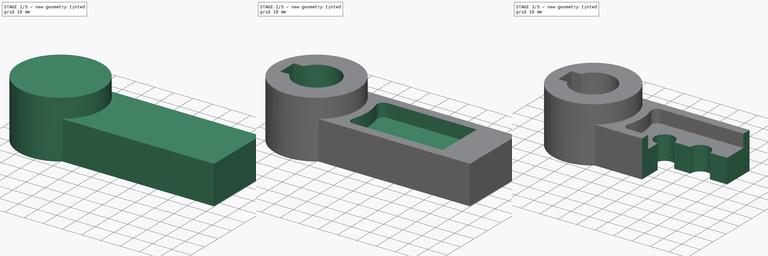
[diagram: build sequence overview — one tinted view per stage of 3, left to right]
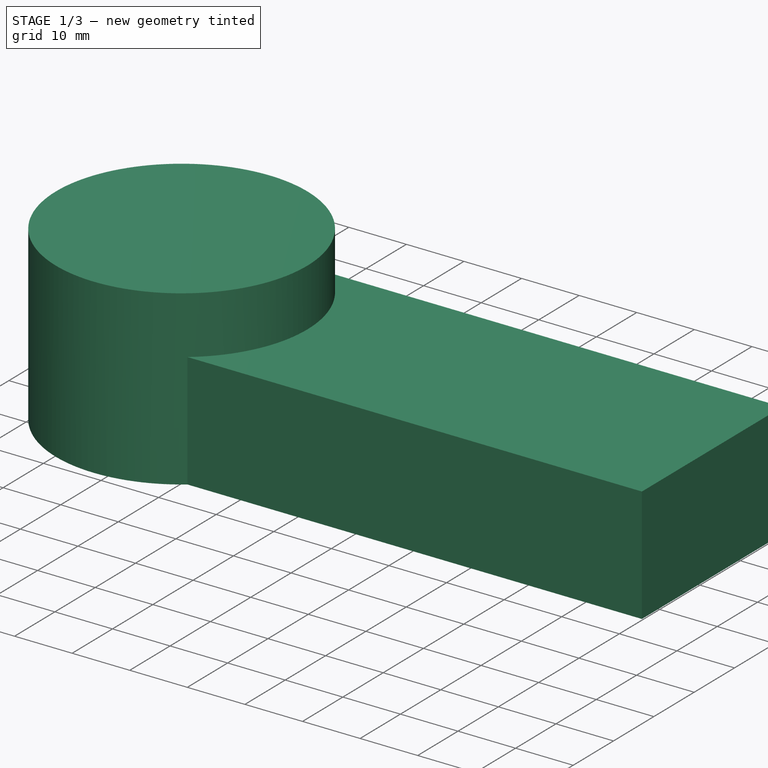
[diagram: stage 1 of 3 — iso view after this stage's code; geometry added in this stage tinted green]
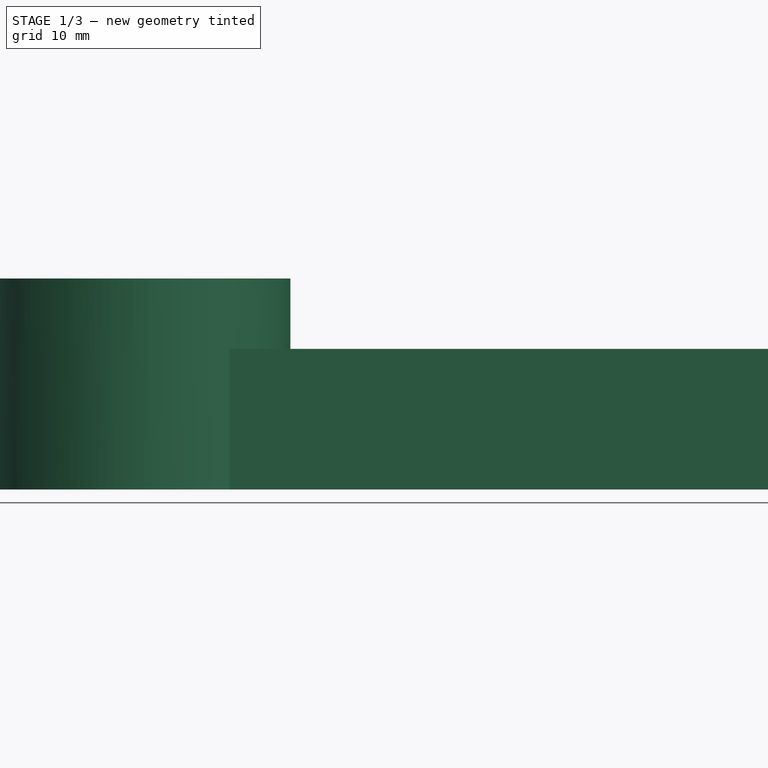
[diagram: stage 1 of 3 — front view after this stage's code; geometry added in this stage tinted green]
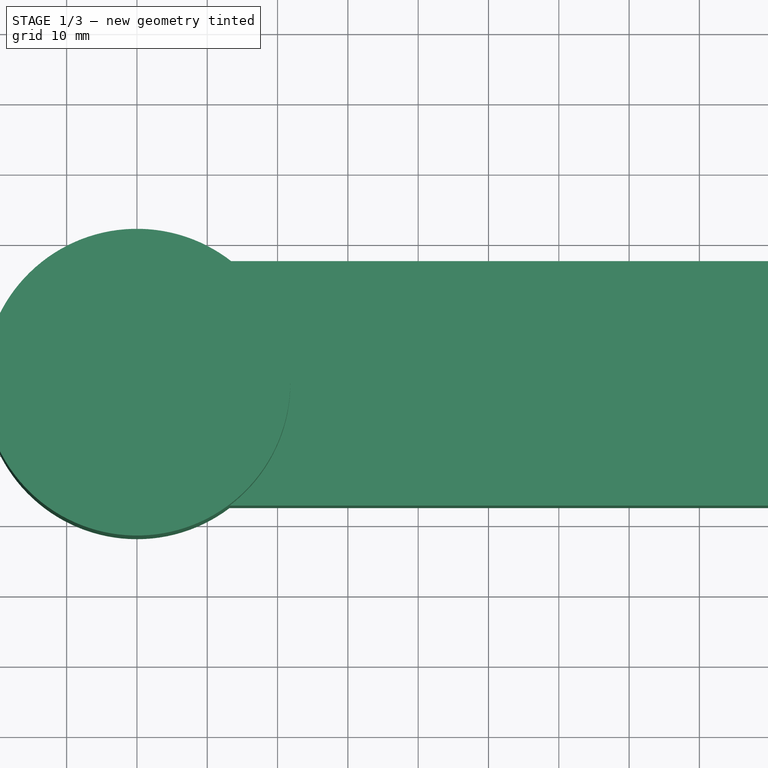
[diagram: stage 1 of 3 — top view after this stage's code; geometry added in this stage tinted green]
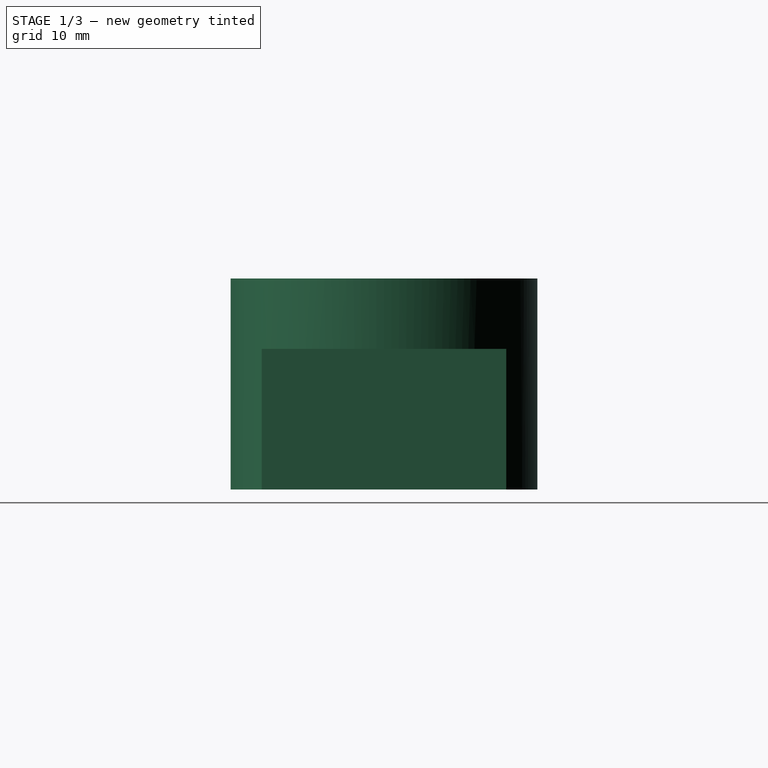
[diagram: stage 1 of 3 — right view after this stage's code; geometry added in this stage tinted green]
FCSTD DOCUMENT  (FreeCAD 0.21R33771 (Git))
Label: ex56
License: All rights reserved
LicenseURL: http://en.wikipedia.org/wiki/All_rights_reserved
objects: Sketcher::SketchObject×7, PartDesign::Pocket×4, PartDesign::Pad×2, PartDesign::Body×1
note: 20 computed .brp shape members not serialized (recipe doc carries the construction recipe); baked Part::Feature solids carry a one-line shape summary decoded from their .brp

FEATURE [Sketcher::SketchObject] Sketch
  FullyConstrained = false
  MapMode = 5
  Support = -> [XY_Plane]
  sketch-geometry (5):
    g0: Circle CenterX=0 CenterY=0 CenterZ=0 NormalX=0 NormalY=0 NormalZ=1 AngleXU=0 Radius=21.8183
    g1: LineSegment StartX=13.1797 StartY=17.3877 StartZ=0 EndX=92.0965 EndY=17.3877 EndZ=0
    g2: LineSegment StartX=92.0965 StartY=17.3877 StartZ=0 EndX=92.0965 EndY=-17.3877 EndZ=0
    g3: LineSegment StartX=92.0965 StartY=-17.3877 StartZ=0 EndX=13.1797 EndY=-17.3877 EndZ=0
    g4: GeomPoint X=0 Y=0 Z=0
  constraints (9):
    c: Coincident(g0,g-1)
    c: Coincident(g1,g2)
    c: Coincident(g2,g3)
    c: Horizontal(g1)
    c: Horizontal(g3)
    c: Vertical(g2)
    c: Coincident(g4,g0)
    c: PointOnObject(g1,g0)
    c: PointOnObject(g3,g0)
FEATURE [Sketcher::SketchObject] Sketch001
  FullyConstrained = false
  MapMode = 5
  Support = -> [XY_Plane]
  sketch-geometry (5):
    g0: ArcOfCircle CenterX=0 CenterY=0 CenterZ=0 NormalX=0 NormalY=0 NormalZ=1 AngleXU=0 Radius=21.8183 StartAngle=5.36098 EndAngle=7.20539
    g1: LineSegment StartX=13.1797 StartY=17.3877 StartZ=0 EndX=92.0965 EndY=17.3877 EndZ=0
    g2: LineSegment StartX=92.0965 StartY=17.3877 StartZ=0 EndX=92.0965 EndY=-17.3877 EndZ=0
    g3: LineSegment StartX=92.0965 StartY=-17.3877 StartZ=0 EndX=13.1797 EndY=-17.3877 EndZ=0
    g4: GeomPoint X=0 Y=0 Z=0
  constraints (9):
    c: Coincident(g0,g-1)
    c: Coincident(g1,g2)
    c: Coincident(g2,g3)
    c: Horizontal(g1)
    c: Horizontal(g3)
    c: Vertical(g2)
    c: Coincident(g4,g0)
    c: Coincident(g0,g1)
    c: Coincident(g0,g3)
FEATURE [PartDesign::Pad] Pad
  Direction = (0,0,1)
  Length = 20
  Length2 = 10
  Profile = -> Sketch001
  ReferenceAxis = -> Sketch001 [N_Axis]
  Refine = true
  Type = 0
FEATURE [Sketcher::SketchObject] Sketch002
  FullyConstrained = false
  MapMode = 5
  Support = -> [XY_Plane]
  sketch-geometry (2):
    g0: Circle CenterX=0 CenterY=0 CenterZ=0 NormalX=0 NormalY=0 NormalZ=1 AngleXU=0 Radius=21.8183
    g1: GeomPoint X=0 Y=0 Z=0
  constraints (2):
    c: Coincident(g0,g-1)
    c: Coincident(g1,g0)
FEATURE [PartDesign::Pad] Pad001
  BaseFeature = -> Pad
  Direction = (0,0,1)
  Length = 30
  Length2 = 10
  Profile = -> Sketch002
  ReferenceAxis = -> Sketch002 [N_Axis]
  Refine = true
  Type = 0
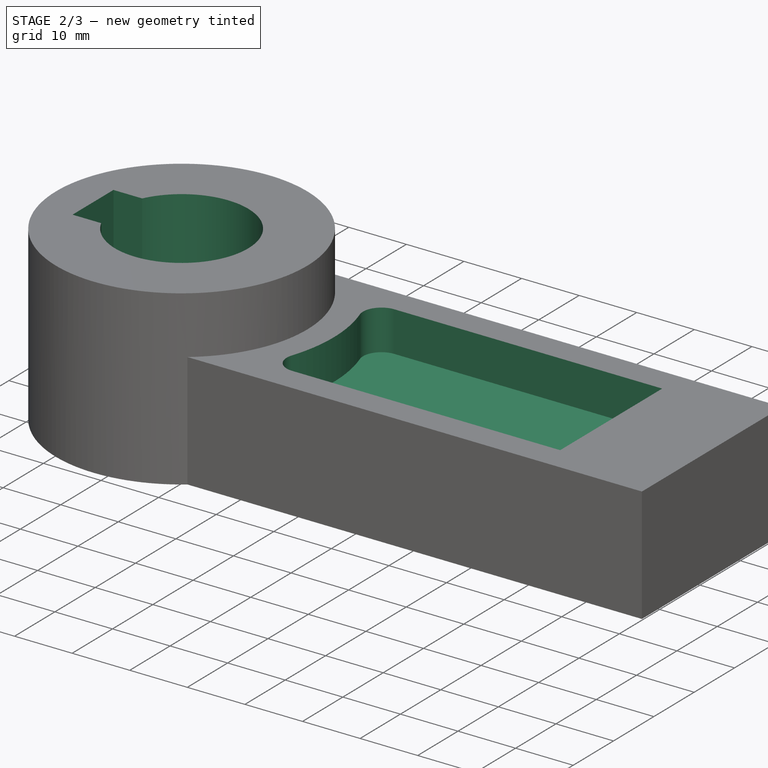
[diagram: stage 2 of 3 — iso view after this stage's code; geometry added in this stage tinted green]
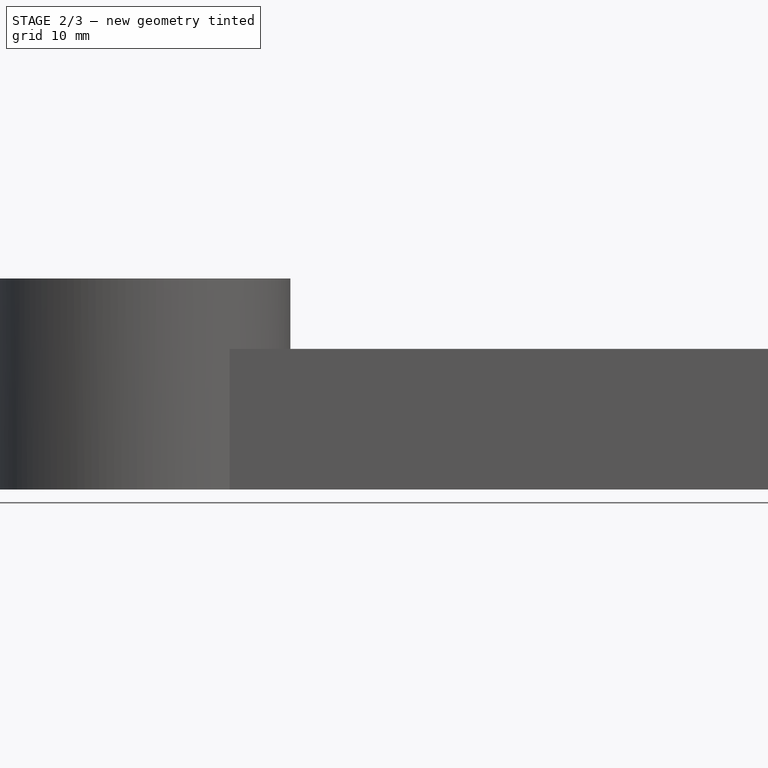
[diagram: stage 2 of 3 — front view after this stage's code; geometry added in this stage tinted green]
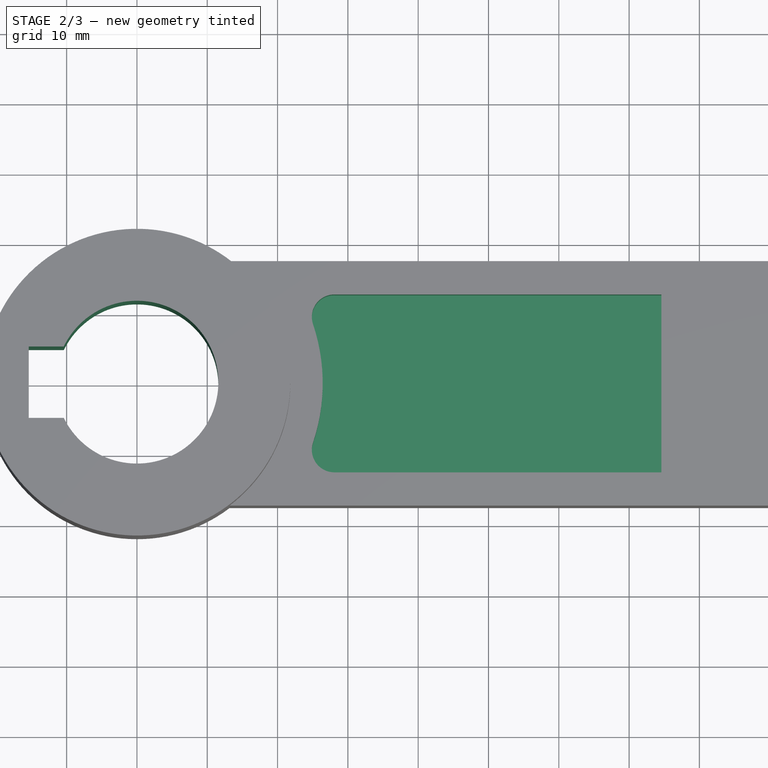
[diagram: stage 2 of 3 — top view after this stage's code; geometry added in this stage tinted green]
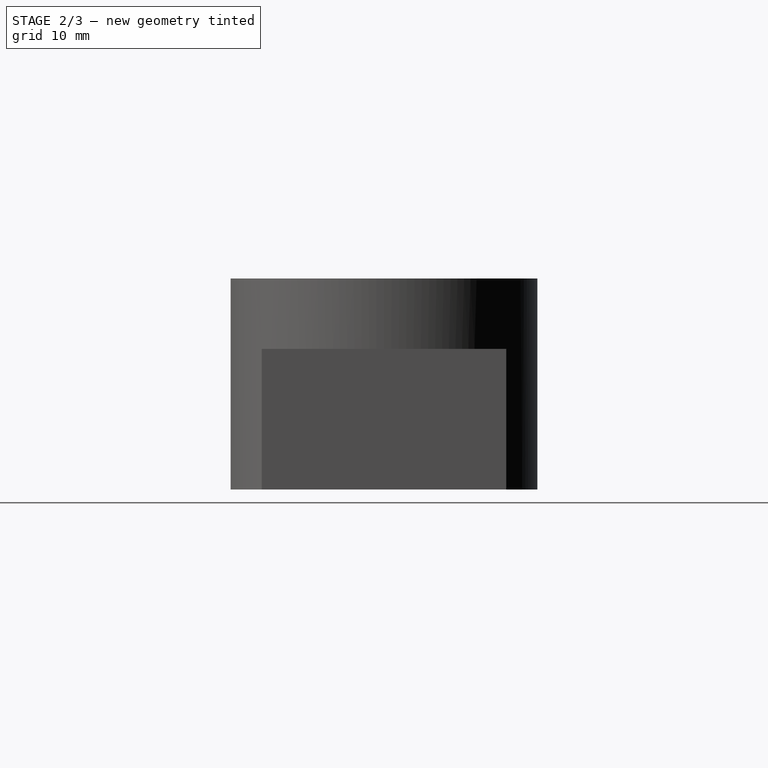
[diagram: stage 2 of 3 — right view after this stage's code; geometry added in this stage tinted green]
FEATURE [Sketcher::SketchObject] Sketch003
  FullyConstrained = false
  MapMode = 5
  Support = -> [XY_Plane]
  sketch-geometry (6):
    g0: GeomPoint X=0 Y=0 Z=0
    g1: ArcOfCircle CenterX=0 CenterY=0 CenterZ=0 NormalX=0 NormalY=0 NormalZ=1 AngleXU=0 Radius=11.5811 StartAngle=3.59519 EndAngle=8.97118
    g2: LineSegment StartX=-10.41 StartY=5.07488 StartZ=0 EndX=-15.391 EndY=5.07488 EndZ=0
    g3: LineSegment StartX=-15.391 StartY=5.07488 StartZ=0 EndX=-15.391 EndY=-5.07488 EndZ=0
    g4: LineSegment StartX=-15.391 StartY=-5.07488 StartZ=0 EndX=-10.41 EndY=-5.07488 EndZ=0
    g5: GeomPoint X=0 Y=0 Z=0
  constraints (7):
    c: Coincident(g2,g3)
    c: Coincident(g3,g4)
    c: Horizontal(g2)
    c: Horizontal(g4)
    c: Vertical(g3)
    c: Coincident(g1,g2)
    c: Coincident(g4,g1)
FEATURE [PartDesign::Pocket] Pocket
  BaseFeature = -> Pad001
  Direction = (0,0,-1)
  Length = 5
  Length2 = 5
  Midplane = true
  Profile = -> Sketch003
  ReferenceAxis = -> Sketch003 [N_Axis]
  Refine = true
  Type = 1
FEATURE [Sketcher::SketchObject] Sketch004
  AttachmentOffset = pos=(0,0,20) rot=(0,0,1;0rad)
  FullyConstrained = false
  MapMode = 5
  Placement = pos=(0,0,20) rot=(0,0,1;0rad)
  Support = -> [XY_Plane]
  sketch-geometry (14):
    g0: Circle CenterX=0 CenterY=0 CenterZ=0 NormalX=0 NormalY=0 NormalZ=1 AngleXU=0 Radius=21.8153
    g1: LineSegment StartX=13.1752 StartY=17.3874 StartZ=0 EndX=92.0965 EndY=17.3874 EndZ=0
    g2: LineSegment StartX=92.0965 StartY=17.3874 StartZ=0 EndX=92.0965 EndY=-17.3854 EndZ=0
    g3: LineSegment StartX=92.0965 StartY=-17.3854 StartZ=0 EndX=13.1779 EndY=-17.3854 EndZ=0
    g4: GeomPoint X=0 Y=0 Z=0
    g5: ArcOfCircle CenterX=0 CenterY=0 CenterZ=0 NormalX=0 NormalY=0 NormalZ=1 AngleXU=0 Radius=26.4235 StartAngle=5.95853 EndAngle=6.60784
    g6: ArcOfCircle CenterX=28.0783 CenterY=9.45004 CenterZ=0 NormalX=0 NormalY=0 NormalZ=1 AngleXU=0 Radius=3.20245 StartAngle=1.5365 EndAngle=3.46624
    g7: ArcOfCircle CenterX=28.0783 CenterY=-9.45004 CenterZ=0 NormalX=0 NormalY=0 NormalZ=1 AngleXU=0 Radius=3.20245 StartAngle=2.81694 EndAngle=4.74668
    g8: LineSegment StartX=28.0783 StartY=27.9541 StartZ=0 EndX=28.0783 EndY=6.24759 EndZ=0
    g9: LineSegment StartX=74.5863 StartY=-12.6506 StartZ=0 EndX=74.5863 EndY=12.6506 EndZ=0
    g10: LineSegment StartX=74.5863 StartY=12.6506 StartZ=0 EndX=28.1881 EndY=12.6506 EndZ=0
    g11: LineSegment StartX=28.1881 StartY=-12.6506 StartZ=0 EndX=74.5863 EndY=-12.6506 EndZ=0
    g12: GeomPoint X=51.2774 Y=0 Z=0
    g13: LineSegment StartX=28.0783 StartY=-6.24759 StartZ=0 EndX=28.0783 EndY=-22.6283 EndZ=0
  constraints (24):
    c: Coincident(g0,g-1)
    c: Coincident(g1,g2)
    c: Coincident(g2,g3)
    c: Horizontal(g1)
    c: Horizontal(g3)
    c: Vertical(g2)
    c: Coincident(g4,g0)
    c: PointOnObject(g1,g0)
    c: PointOnObject(g3,g0)
    c: Coincident(g5,g0)
    c: Equal(g7,g6)
    c: Vertical(g8)
    c: PointOnObject(g7,g8)
    c: PointOnObject(g6,g8)
    c: Coincident(g9,g10)
    c: Coincident(g11,g9)
    c: Horizontal(g10)
    c: Horizontal(g11)
    c: Vertical(g9)
    c: PointOnObject(g12,g-1)
    c: Tangent(g6,g5) = 1.5708
    c: Tangent(g7,g5) = 1.5708
    c: Coincident(g11,g7)
    c: Coincident(g10,g6)
FEATURE [PartDesign::Pocket] Pocket001
  BaseFeature = -> Pocket
  Direction = (0,0,-1)
  Length = 7
  Length2 = 5
  Profile = -> Sketch004
  ReferenceAxis = -> Sketch004 [N_Axis]
  Refine = true
  Type = 0
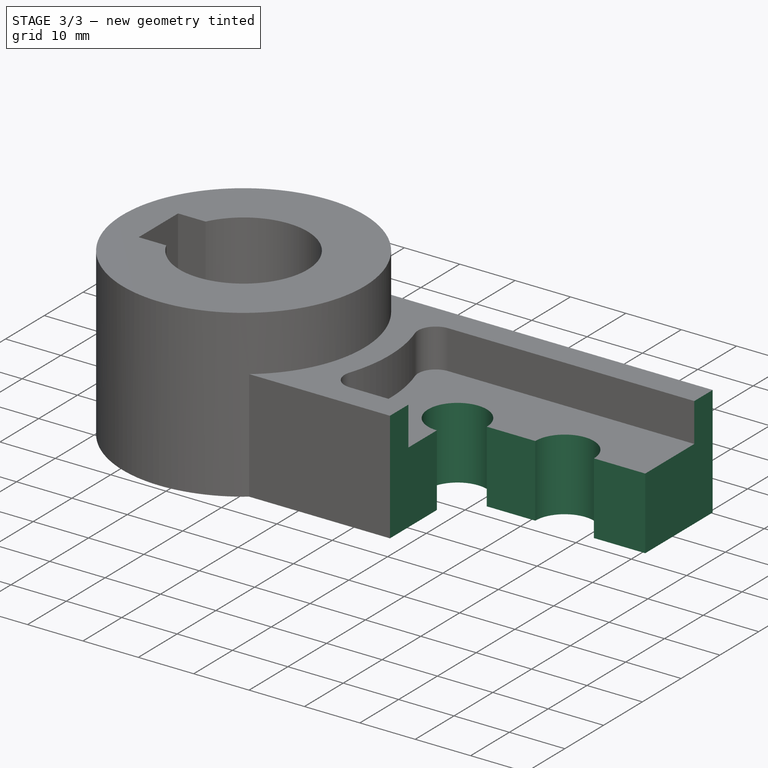
[diagram: stage 3 of 3 — iso view after this stage's code; geometry added in this stage tinted green]
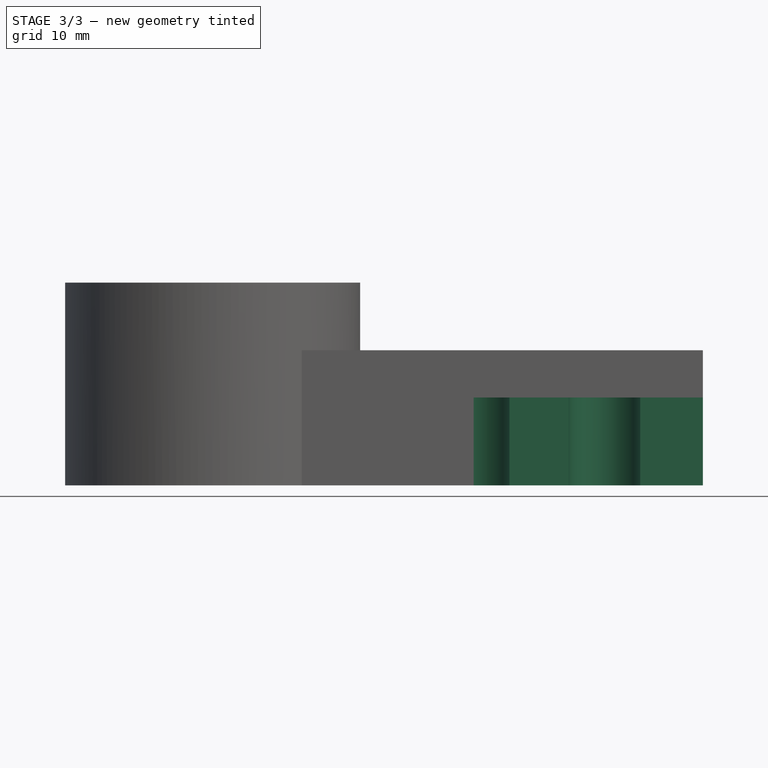
[diagram: stage 3 of 3 — front view after this stage's code; geometry added in this stage tinted green]
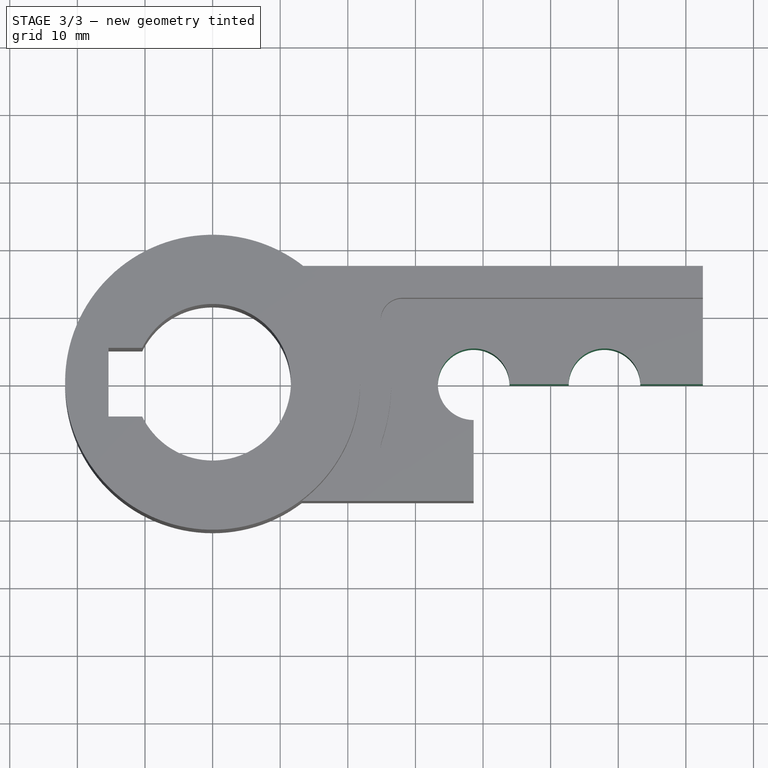
[diagram: stage 3 of 3 — top view after this stage's code; geometry added in this stage tinted green]
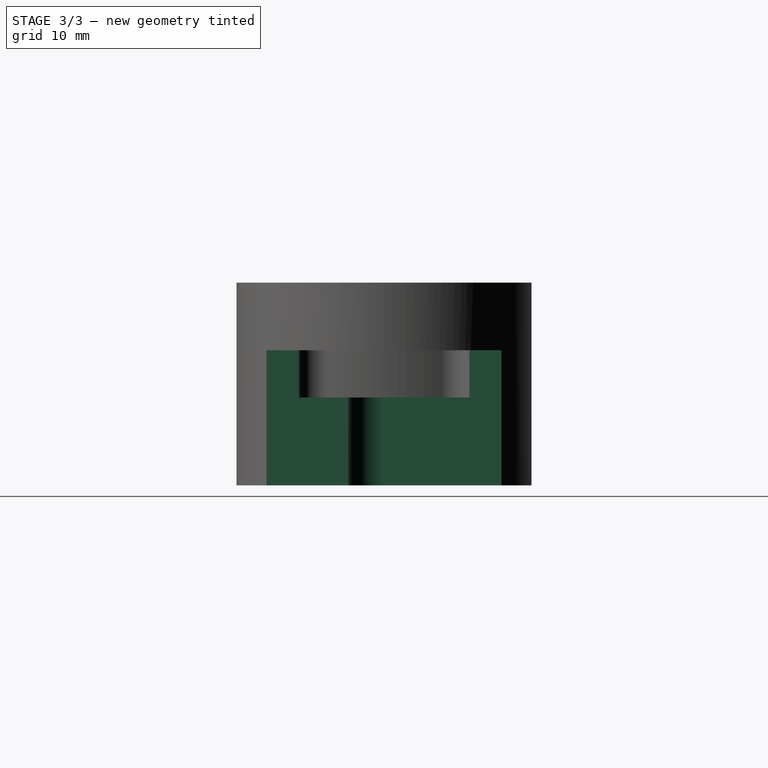
[diagram: stage 3 of 3 — right view after this stage's code; geometry added in this stage tinted green]
FEATURE [Sketcher::SketchObject] Sketch005
  FullyConstrained = false
  MapMode = 5
  Placement = pos=(0,0,13) rot=(0,0,1;0rad)
  Support = -> [Pocket001]
  sketch-geometry (2):
    g0: Circle CenterX=57.9619 CenterY=0 CenterZ=0 NormalX=0 NormalY=0 NormalZ=1 AngleXU=0 Radius=5.29507
    g1: Circle CenterX=38.6175 CenterY=0 CenterZ=0 NormalX=0 NormalY=0 NormalZ=1 AngleXU=0 Radius=5.29507
  constraints (3):
    c: PointOnObject(g0,g-1)
    c: PointOnObject(g1,g-1)
    c: Equal(g1,g0)
FEATURE [PartDesign::Pocket] Pocket002
  BaseFeature = -> Pocket001
  Direction = (0,0,-1)
  Length = 5
  Length2 = 5
  Profile = -> Sketch005
  ReferenceAxis = -> Sketch005 [N_Axis]
  Refine = true
  Type = 1
FEATURE [Sketcher::SketchObject] Sketch006
  FullyConstrained = false
  MapMode = 5
  Placement = pos=(0,0,20) rot=(0,0,1;0rad)
  Support = -> [Pocket002]
  sketch-geometry (6):
    g0: LineSegment StartX=38.5995 StartY=0 StartZ=0 EndX=38.5995 EndY=-29.0315 EndZ=0
    g1: LineSegment StartX=38.5995 StartY=0 StartZ=0 EndX=72.5203 EndY=0 EndZ=0
    g2: LineSegment StartX=72.5203 StartY=0 StartZ=0 EndX=72.5203 EndY=19.057 EndZ=0
    g3: LineSegment StartX=72.5203 StartY=19.057 StartZ=0 EndX=99.4935 EndY=19.057 EndZ=0
    g4: LineSegment StartX=99.4935 StartY=19.057 StartZ=0 EndX=99.4935 EndY=-29.0315 EndZ=0
    g5: LineSegment StartX=99.4935 StartY=-29.0315 StartZ=0 EndX=38.5995 EndY=-29.0315 EndZ=0
  constraints (13):
    c: PointOnObject(g0,g-1)
    c: Vertical(g0)
    c: Coincident(g1,g0)
    c: PointOnObject(g1,g-1)
    c: Vertical(g2)
    c: Horizontal(g3)
    c: Vertical(g4)
    c: Coincident(g5,g0)
    c: Horizontal(g5)
    c: Coincident(g4,g5)
    c: Coincident(g3,g4)
    c: Coincident(g3,g2)
    c: Coincident(g1,g2)
FEATURE [PartDesign::Pocket] Pocket003
  BaseFeature = -> Pocket002
  Direction = (0,0,-1)
  Length = 5
  Length2 = 5
  Profile = -> Sketch006
  ReferenceAxis = -> Sketch006 [N_Axis]
  Refine = true
  Type = 1
FEATURE [PartDesign::Body] Body
  Group = -> [Sketch,Sketch001,Pad,Sketch002,Pad001,Sketch003,Pocket,Sketch004,Pocket001,Sketch005,Pocket002,Sketch006,Pocket003]
  Origin = -> Origin
  Tip = -> Pocket003
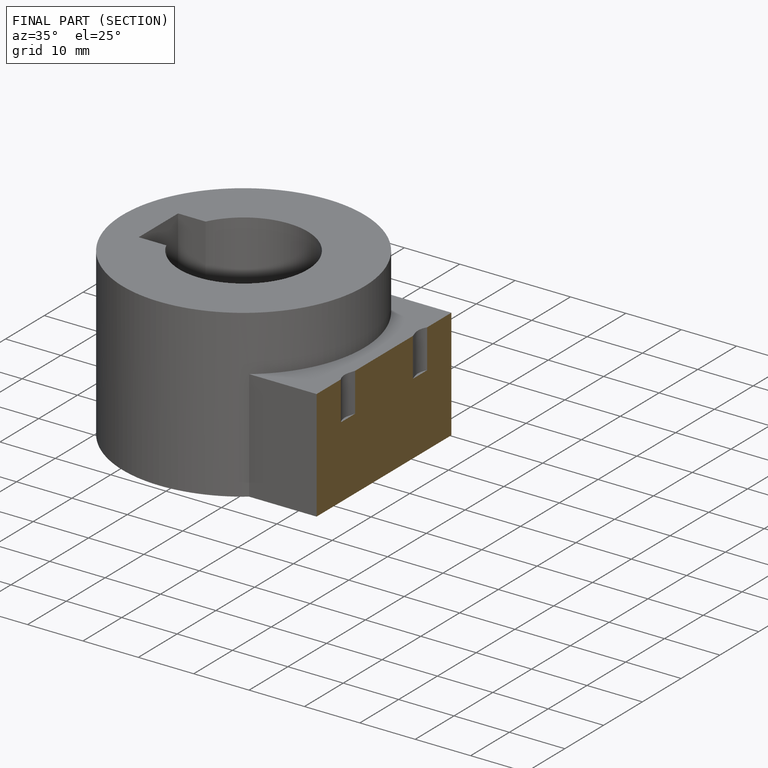
[diagram: finished part — half-section view (interior)]
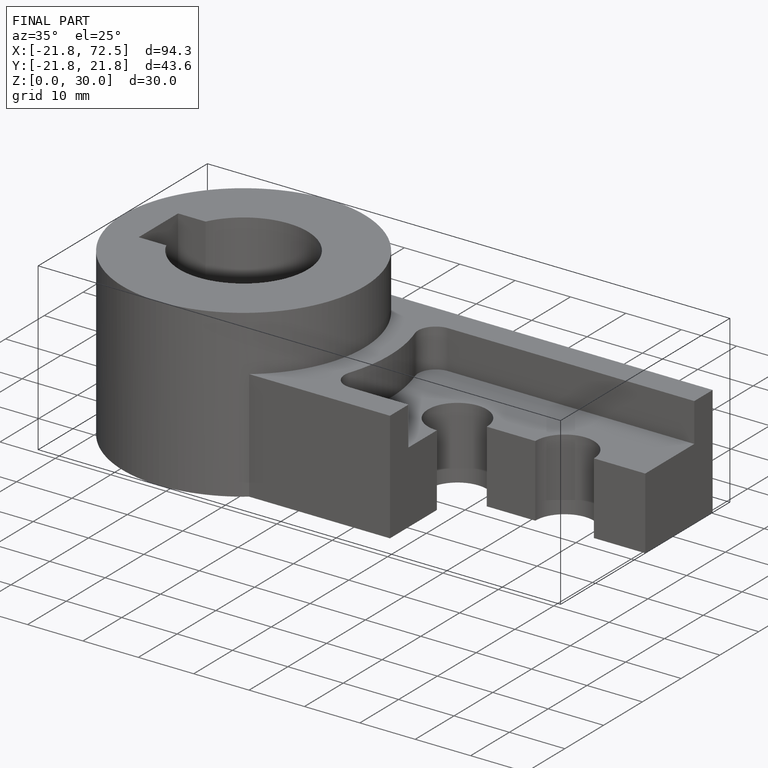
[diagram: finished part — iso view with bounding-box wireframe]
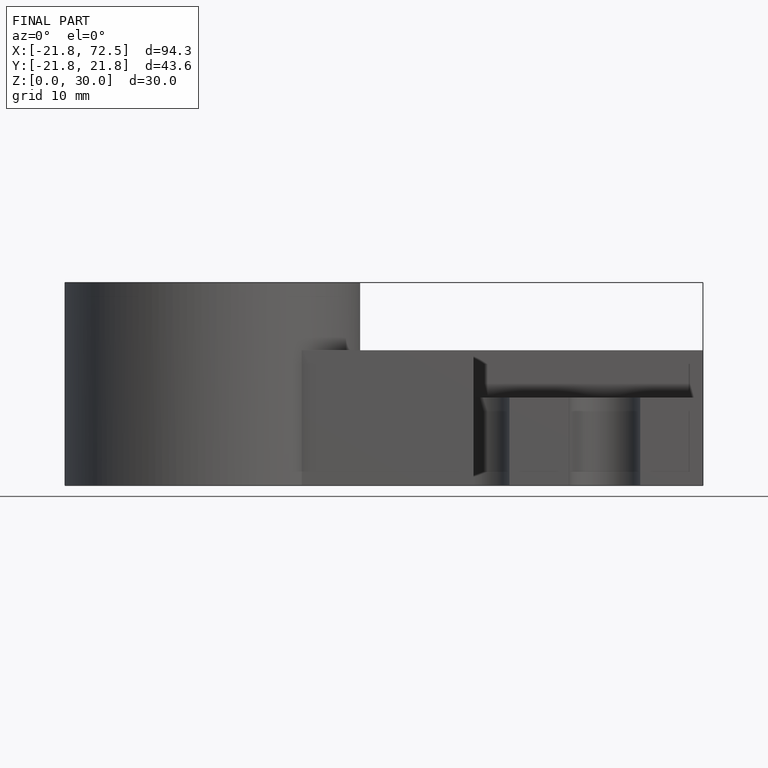
[diagram: finished part — front view with bounding-box wireframe]
